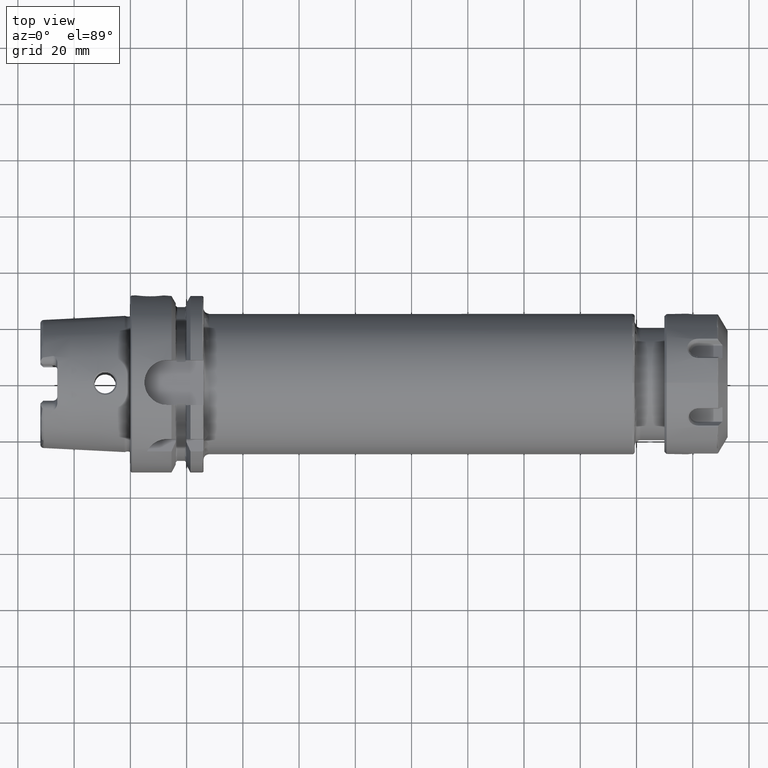
[diagram: clean part render]
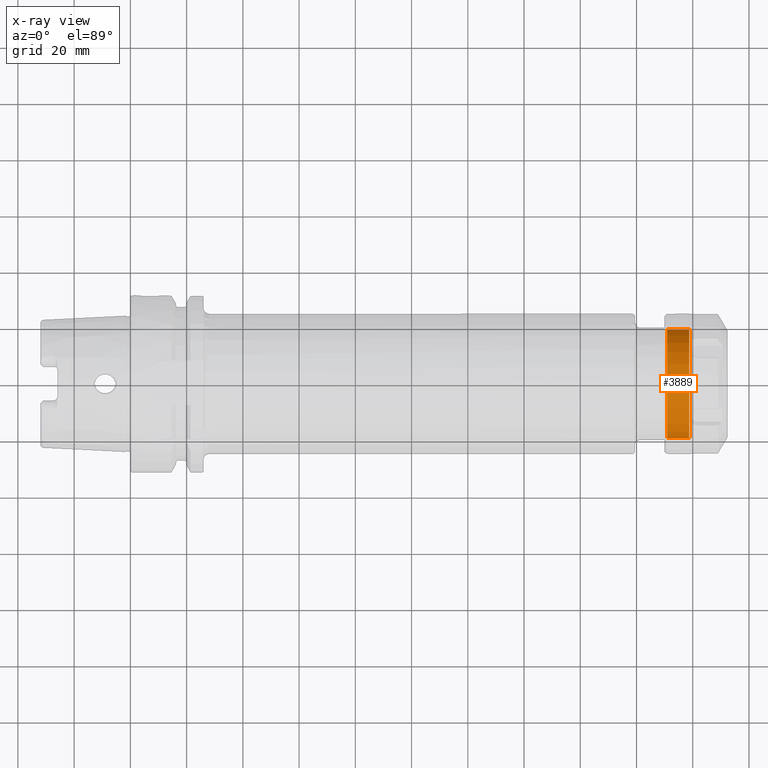
[diagram: x-ray — body ghosted, one internal face saturated and labeled with its STEP entity id]
A machine part, top view, then the same camera in x-ray: the body is ghosted and one INTERNAL B-rep face — a face not visible from any outside direction — is saturated and labeled: STEP entity #3889.
In plain terms, the highlighted cylindrical surface (bore or boss wall) has radius 19.3 mm, axis along (1, -0, -0).
Its self-contained STEP definition (entity closure, byte-faithful):
#875=FACE_OUTER_BOUND('',#1094,.T.);
#1094=EDGE_LOOP('',(#3309,#3310,#3311,#3312,#3313));
#1289=LINE('',#7419,#1482);
#1482=VECTOR('',#5263,19.3);
#1724=CIRCLE('',#4395,19.3);
#1725=CIRCLE('',#4396,19.3);
#1726=CIRCLE('',#4398,19.3);
#1992=VERTEX_POINT('',#7412);
#1993=VERTEX_POINT('',#7414);
#1994=VERTEX_POINT('',#7418);
#2447=EDGE_CURVE('',#1992,#1993,#1724,.T.);
#2448=EDGE_CURVE('',#1993,#1992,#1725,.T.);
#2449=EDGE_CURVE('',#1993,#1994,#1289,.T.);
#2450=EDGE_CURVE('',#1994,#1994,#1726,.T.);
#3309=ORIENTED_EDGE('',*,*,#2447,.F.);
#3310=ORIENTED_EDGE('',*,*,#2448,.F.);
#3311=ORIENTED_EDGE('',*,*,#2449,.T.);
#3312=ORIENTED_EDGE('',*,*,#2450,.F.);
#3313=ORIENTED_EDGE('',*,*,#2449,.F.);
#3746=CYLINDRICAL_SURFACE('',#4397,19.3);
#3889=ADVANCED_FACE('',(#875),#3746,.F.);
#4395=AXIS2_PLACEMENT_3D('',#7415,#5257,#5258);
#4396=AXIS2_PLACEMENT_3D('',#7416,#5259,#5260);
#4397=AXIS2_PLACEMENT_3D('',#7417,#5261,#5262);
#4398=AXIS2_PLACEMENT_3D('',#7420,#5264,#5265);
#5257=DIRECTION('center_axis',(1.,0.,0.));
#5258=DIRECTION('ref_axis',(0.,1.,0.));
#5259=DIRECTION('center_axis',(1.,0.,0.));
#5260=DIRECTION('ref_axis',(0.,1.,0.));
#5261=DIRECTION('center_axis',(1.,0.,0.));
#5262=DIRECTION('ref_axis',(0.,-1.,0.));
#5263=DIRECTION('',(1.,0.,0.));
#5264=DIRECTION('center_axis',(-1.,0.,0.));
#5265=DIRECTION('ref_axis',(0.,1.,0.));
#7412=CARTESIAN_POINT('',(-10.25,-19.2996618297511,0.114250852292867));
#7414=CARTESIAN_POINT('',(-10.25,19.3,2.36356832235439E-15));
#7415=CARTESIAN_POINT('Origin',(-10.25,0.,0.));
#7416=CARTESIAN_POINT('Origin',(-10.25,0.,0.));
#7417=CARTESIAN_POINT('Origin',(0.,0.,0.));
#7418=CARTESIAN_POINT('',(-2.39544826719,19.3,0.));
#7419=CARTESIAN_POINT('',(0.,19.3,2.36356832235439E-15));
#7420=CARTESIAN_POINT('Origin',(-2.39544826719,0.,0.));